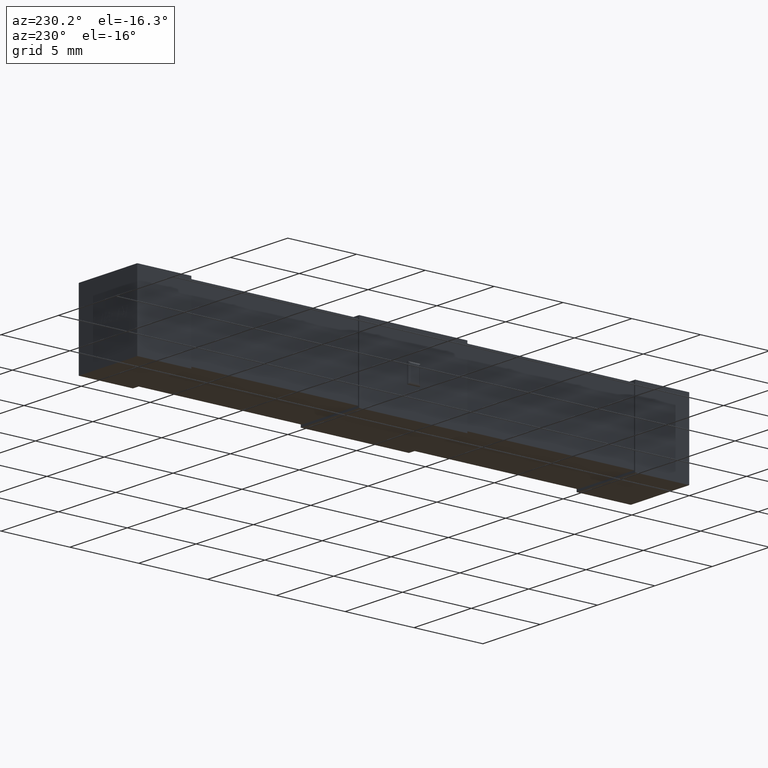
[diagram: clean part render]
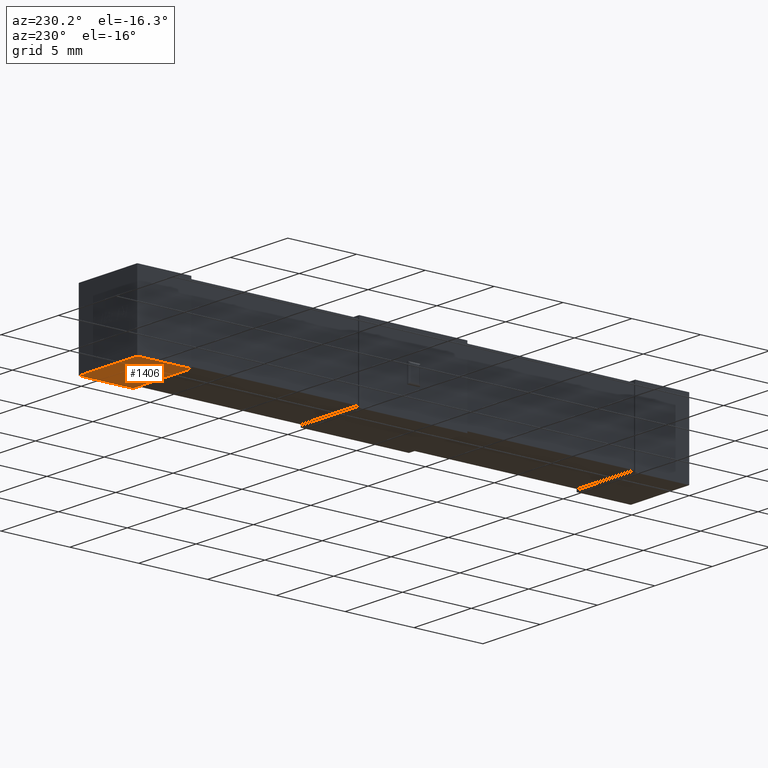
[diagram: same view with one face highlighted and labeled with its STEP entity id]
A machine part, auxiliary view. The second image highlights one B-rep face of the part: STEP entity #1406.
In plain terms, the highlighted planar face has unit normal (0, 0, -1).
Its self-contained STEP definition (entity closure, byte-faithful):
#46 = CARTESIAN_POINT ( 'NONE',  ( 5.099999999999999645, 40.10000000000000142, 0.000000000000000000 ) ) ;
#226 = LINE ( 'NONE', #2318, #1138 ) ;
#272 = CARTESIAN_POINT ( 'NONE',  ( 0.000000000000000000, 0.000000000000000000, 0.000000000000000000 ) ) ;
#333 = CARTESIAN_POINT ( 'NONE',  ( 0.000000000000000000, 40.10000000000000142, 0.000000000000000000 ) ) ;
#479 = FACE_OUTER_BOUND ( 'NONE', #732, .T. ) ;
#688 = EDGE_CURVE ( 'NONE', #2692, #1537, #226, .T. ) ;
#732 = EDGE_LOOP ( 'NONE', ( #2080, #2471, #953, #2487 ) ) ;
#763 = DIRECTION ( 'NONE',  ( 0.000000000000000000, 0.000000000000000000, -1.000000000000000000 ) ) ;
#953 = ORIENTED_EDGE ( 'NONE', *, *, #3309, .F. ) ;
#1025 = PLANE ( 'NONE',  #1462 ) ;
#1039 = DIRECTION ( 'NONE',  ( -0.000000000000000000, -1.000000000000000000, -0.000000000000000000 ) ) ;
#1093 = LINE ( 'NONE', #2142, #2293 ) ;
#1138 = VECTOR ( 'NONE', #2336, 1000.000000000000000 ) ;
#1303 = LINE ( 'NONE', #2347, #2241 ) ;
#1308 = CARTESIAN_POINT ( 'NONE',  ( 5.099999999999999645, 0.000000000000000000, 0.000000000000000000 ) ) ;
#1374 = DIRECTION ( 'NONE',  ( -1.000000000000000000, -0.000000000000000000, 0.000000000000000000 ) ) ;
#1406 = ADVANCED_FACE ( 'NONE', ( #479 ), #1025, .T. ) ;
#1462 = AXIS2_PLACEMENT_3D ( 'NONE', #272, #763, #2934 ) ;
#1537 = VERTEX_POINT ( 'NONE', #333 ) ;
#2080 = ORIENTED_EDGE ( 'NONE', *, *, #2972, .F. ) ;
#2142 = CARTESIAN_POINT ( 'NONE',  ( 9.895391066470449996E-16, 36.17020000000000124, 1.734723475976807094E-15 ) ) ;
#2217 = VERTEX_POINT ( 'NONE', #2816 ) ;
#2241 = VECTOR ( 'NONE', #1039, 1000.000000000000000 ) ;
#2293 = VECTOR ( 'NONE', #1374, 1000.000000000000000 ) ;
#2298 = CARTESIAN_POINT ( 'NONE',  ( 5.099999999999998757, 36.17020000000000124, 1.734723475976807094E-15 ) ) ;
#2318 = CARTESIAN_POINT ( 'NONE',  ( 0.000000000000000000, 40.10000000000000142, 0.000000000000000000 ) ) ;
#2336 = DIRECTION ( 'NONE',  ( -1.000000000000000000, -0.000000000000000000, -0.000000000000000000 ) ) ;
#2347 = CARTESIAN_POINT ( 'NONE',  ( 0.000000000000000000, 0.000000000000000000, 0.000000000000000000 ) ) ;
#2353 = DIRECTION ( 'NONE',  ( 0.000000000000000000, 1.000000000000000000, 0.000000000000000000 ) ) ;
#2471 = ORIENTED_EDGE ( 'NONE', *, *, #3115, .T. ) ;
#2487 = ORIENTED_EDGE ( 'NONE', *, *, #688, .F. ) ;
#2692 = VERTEX_POINT ( 'NONE', #46 ) ;
#2816 = CARTESIAN_POINT ( 'NONE',  ( 0.000000000000000000, 36.17020000000000124, 0.000000000000000000 ) ) ;
#2934 = DIRECTION ( 'NONE',  ( -1.000000000000000000, 0.000000000000000000, -0.000000000000000000 ) ) ;
#2969 = VERTEX_POINT ( 'NONE', #2298 ) ;
#2972 = EDGE_CURVE ( 'NONE', #2969, #2692, #3336, .T. ) ;
#3115 = EDGE_CURVE ( 'NONE', #2969, #2217, #1093, .T. ) ;
#3309 = EDGE_CURVE ( 'NONE', #1537, #2217, #1303, .T. ) ;
#3336 = LINE ( 'NONE', #1308, #3384 ) ;
#3384 = VECTOR ( 'NONE', #2353, 1000.000000000000000 ) ;